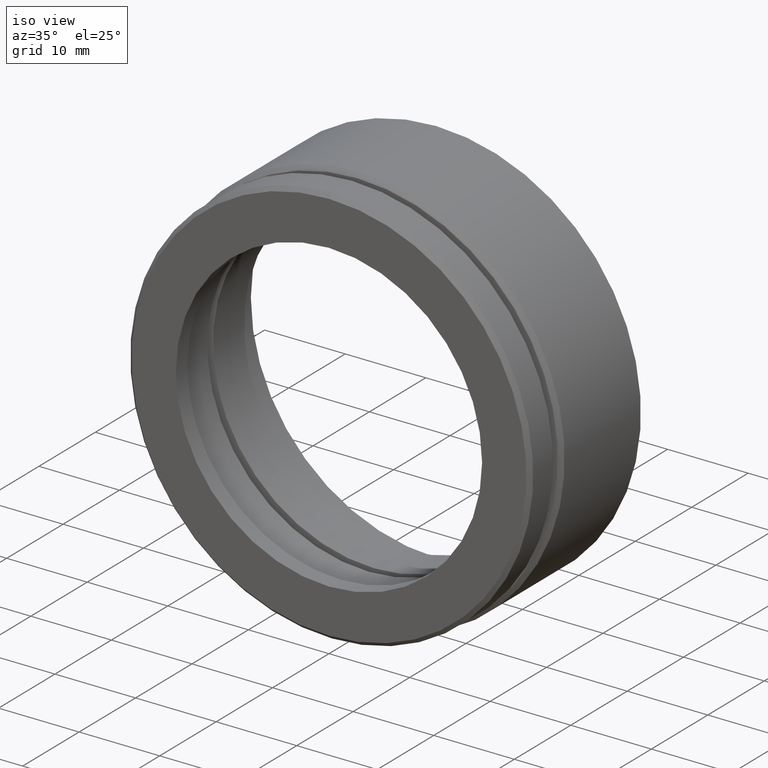
[diagram: clean part render]
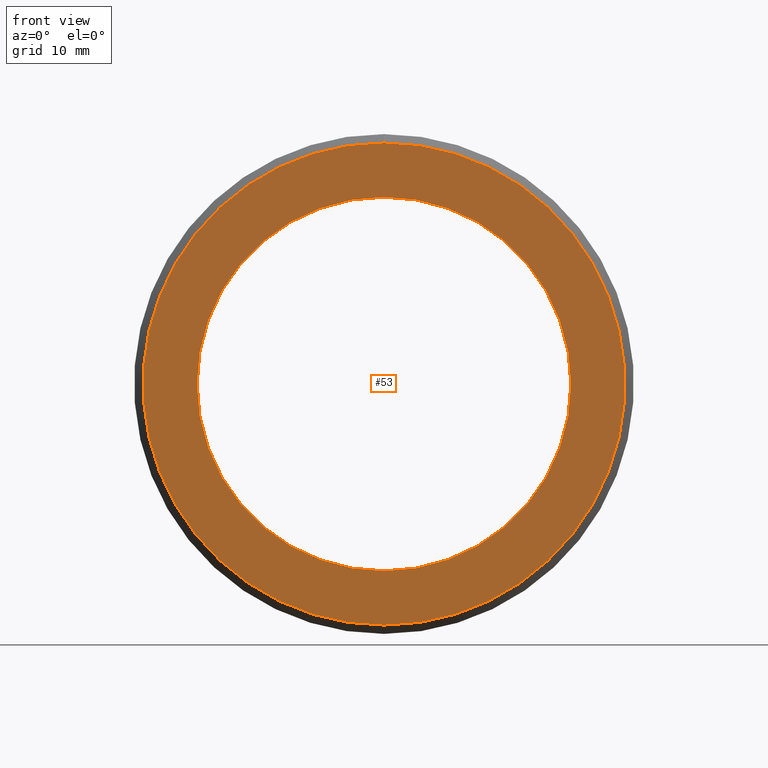
[diagram: tour spotlight — one face highlighted and labeled with its STEP entity id]
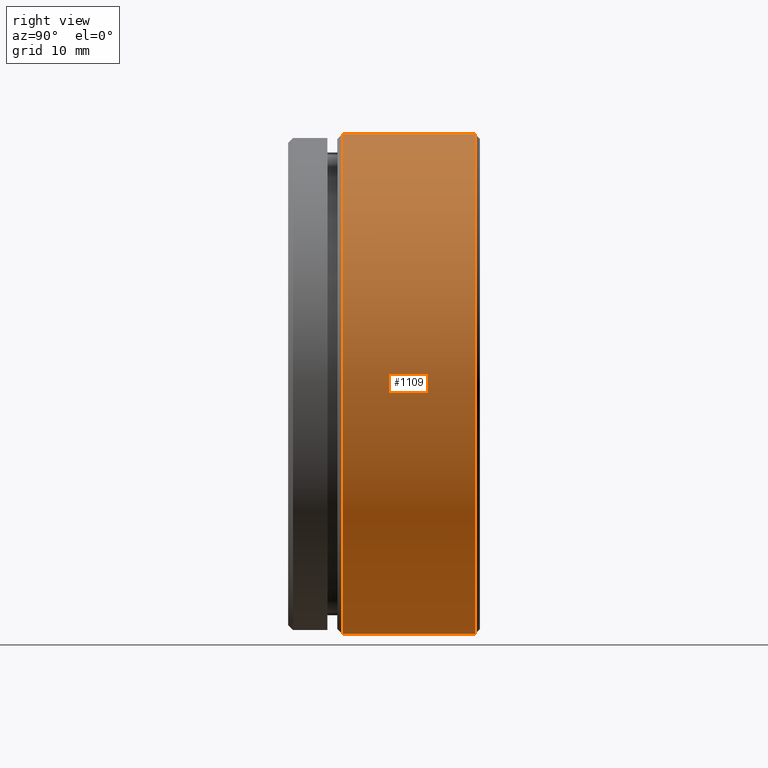
[diagram: tour spotlight — one face highlighted and labeled with its STEP entity id]
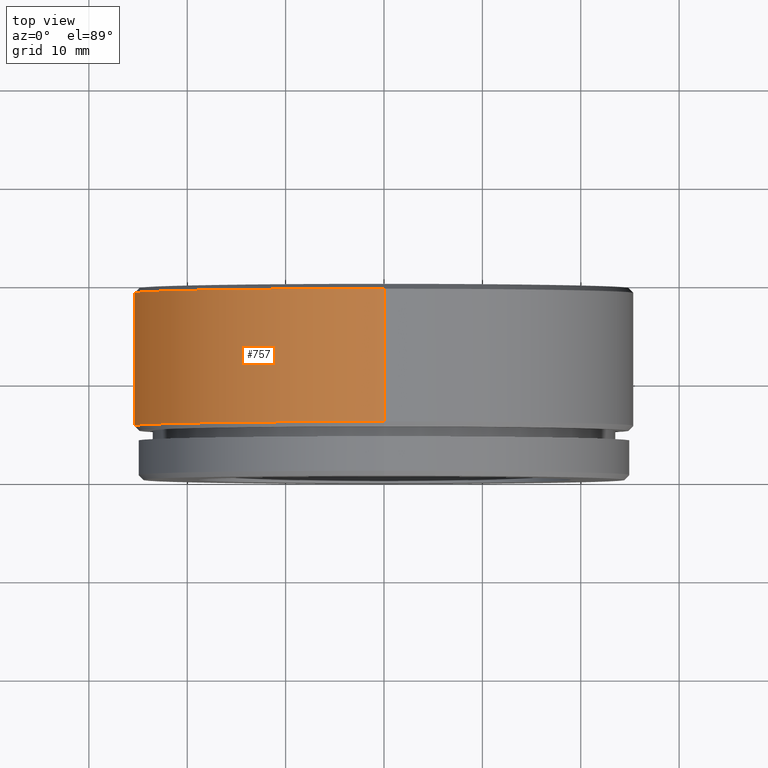
[diagram: tour spotlight — one face highlighted and labeled with its STEP entity id]
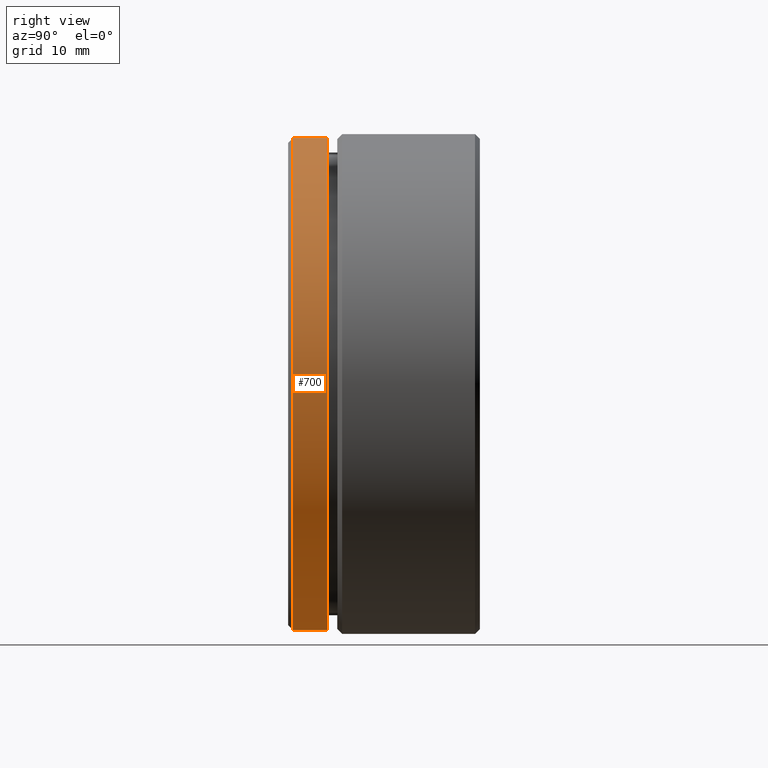
[diagram: tour spotlight — one face highlighted and labeled with its STEP entity id]
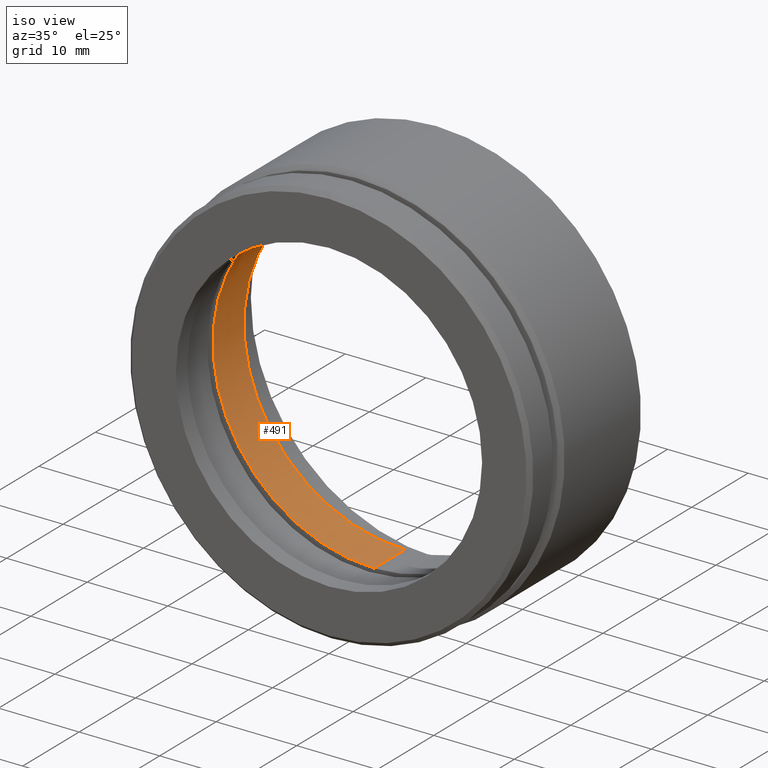
[diagram: tour spotlight — one face highlighted and labeled with its STEP entity id]
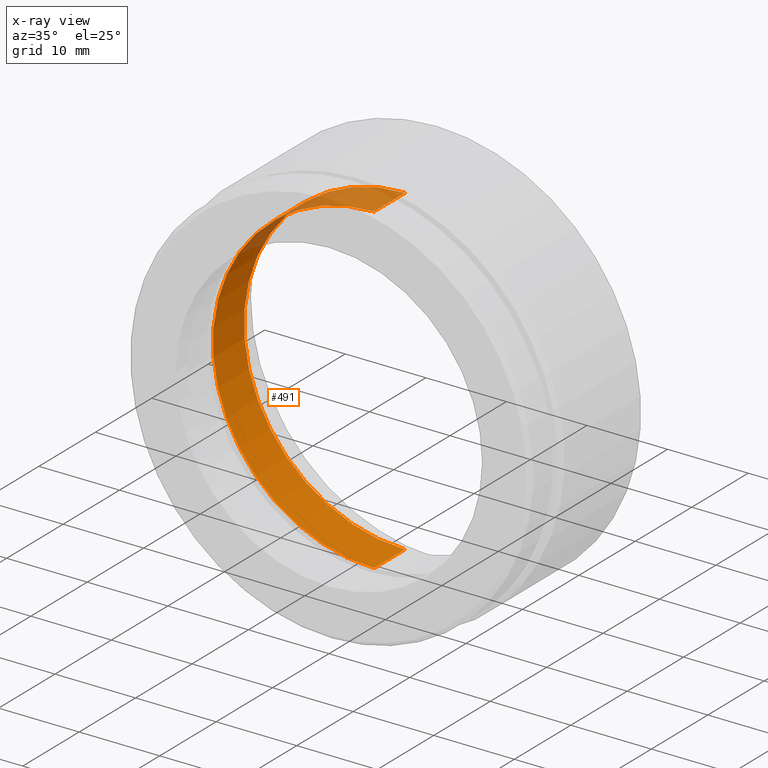
[diagram: x-ray of the same camera — body ghosted, this tour face saturated]
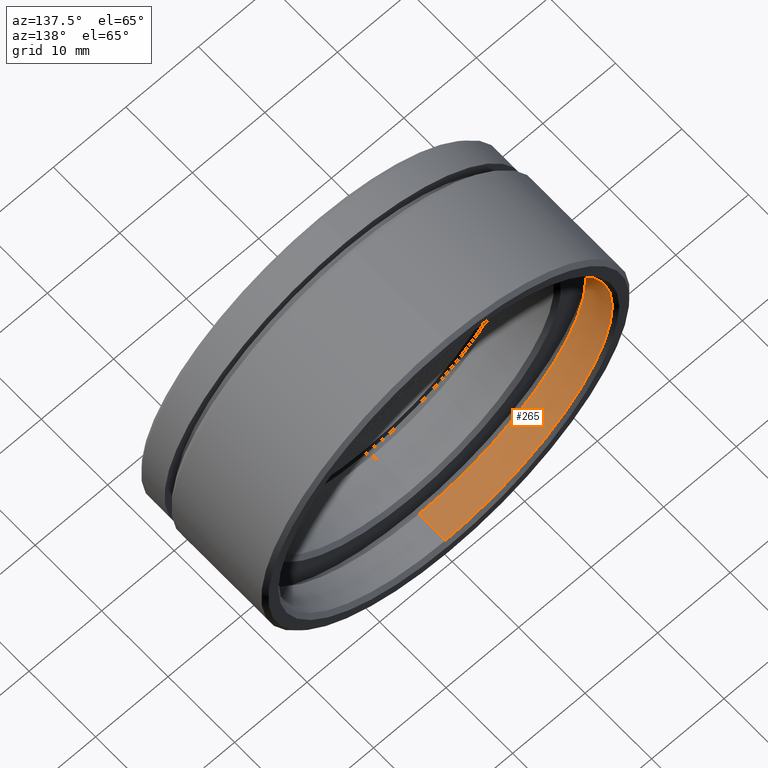
[diagram: tour spotlight — one face highlighted and labeled with its STEP entity id]
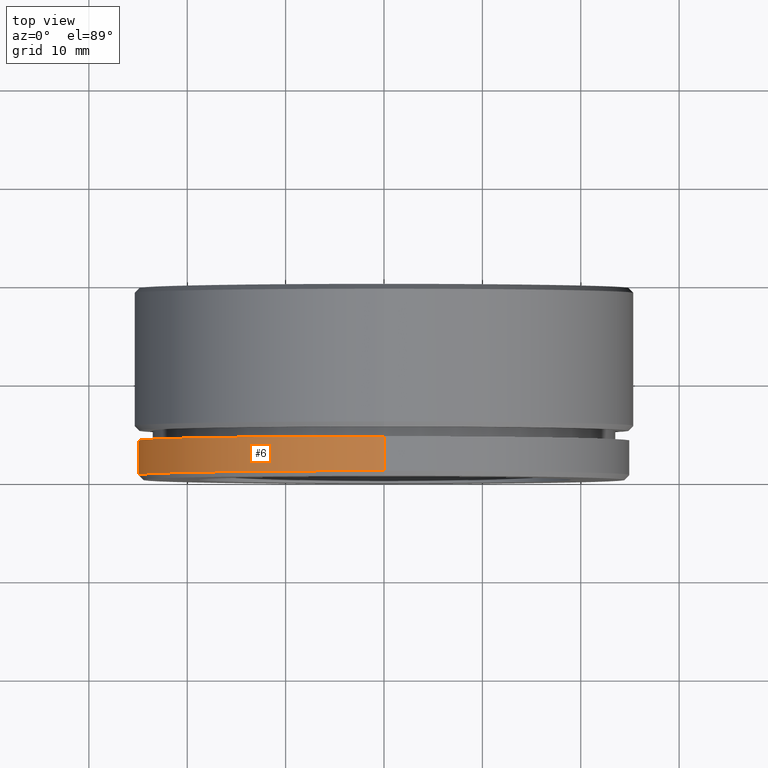
[diagram: tour spotlight — one face highlighted and labeled with its STEP entity id]
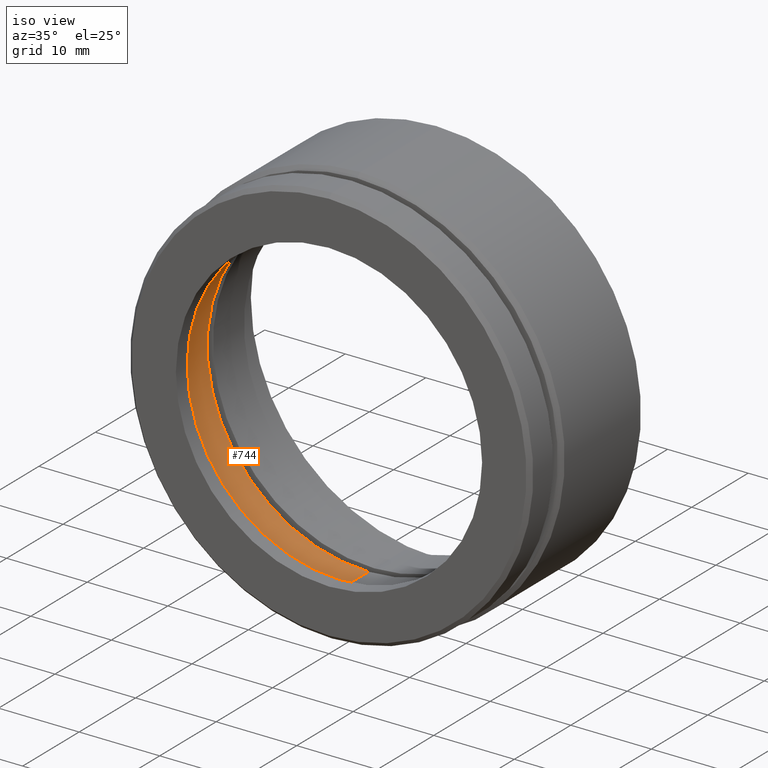
[diagram: tour spotlight — one face highlighted and labeled with its STEP entity id]
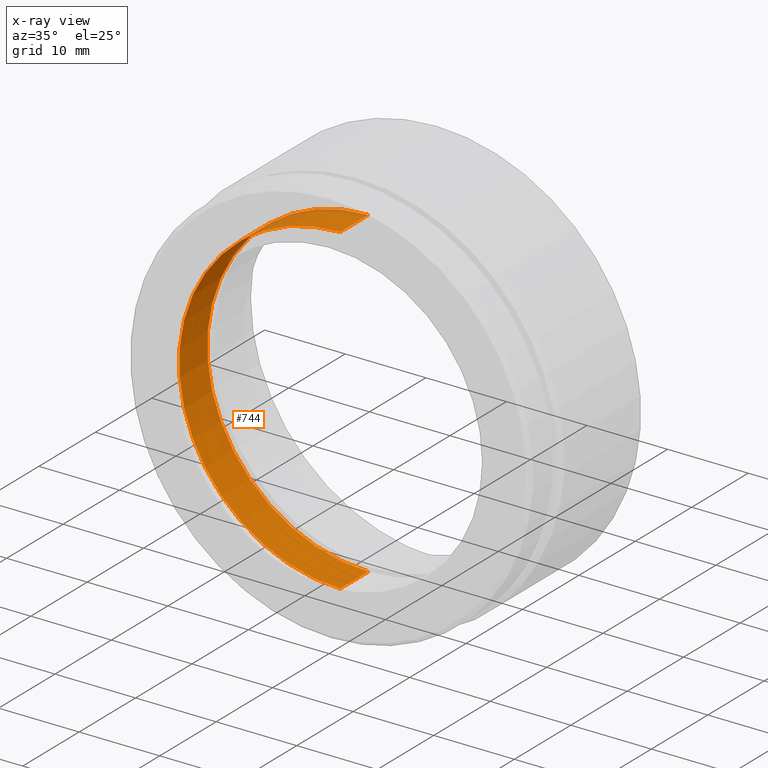
[diagram: x-ray of the same camera — body ghosted, this tour face saturated]
A machine part: a face-by-face anatomy tour. The part has 37 B-rep faces; the first image is the clean iso view, then the 8 largest visible faces are spotlighted one at a time (largest first), each with its STEP entity span.

Face 1 — front view, entity #53. In plain terms, the highlighted planar face has unit normal (0, -1, -0).
Definition (entity closure, byte-faithful):
#21 = EDGE_CURVE ( 'NONE', #455, #651, #697, .T. ) ;
#53 = ADVANCED_FACE ( 'NONE', ( #745, #301 ), #713, .T. ) ;
#73 = ORIENTED_EDGE ( 'NONE', *, *, #954, .T. ) ;
#115 = CARTESIAN_POINT ( 'NONE',  ( 3.031000827889699300E-015, 0.0000000000000000000, -24.50000000000000000 ) ) ;
#121 = EDGE_LOOP ( 'NONE', ( #659, #1071 ) ) ;
#128 = DIRECTION ( 'NONE',  ( -0.0000000000000000000, -1.000000000000000000, -0.0000000000000000000 ) ) ;
#131 = DIRECTION ( 'NONE',  ( 0.0000000000000000000, 0.0000000000000000000, -1.000000000000000000 ) ) ;
#149 = DIRECTION ( 'NONE',  ( 0.0000000000000000000, 0.0000000000000000000, -1.000000000000000000 ) ) ;
#223 = CARTESIAN_POINT ( 'NONE',  ( 0.0000000000000000000, 0.0000000000000000000, 24.50000000000000000 ) ) ;
#276 = AXIS2_PLACEMENT_3D ( 'NONE', #722, #778, #131 ) ;
#277 = VERTEX_POINT ( 'NONE', #115 ) ;
#301 = FACE_BOUND ( 'NONE', #121, .T. ) ;
#359 = DIRECTION ( 'NONE',  ( 0.0000000000000000000, 0.0000000000000000000, -1.000000000000000000 ) ) ;
#391 = DIRECTION ( 'NONE',  ( 0.0000000000000000000, 0.0000000000000000000, -1.000000000000000000 ) ) ;
#396 = CARTESIAN_POINT ( 'NONE',  ( 19.00000000000000000, 0.0000000000000000000, 0.0000000000000000000 ) ) ;
#407 = DIRECTION ( 'NONE',  ( 0.0000000000000000000, -1.000000000000000000, -0.0000000000000000000 ) ) ;
#445 = VERTEX_POINT ( 'NONE', #223 ) ;
#455 = VERTEX_POINT ( 'NONE', #990 ) ;
#543 = EDGE_LOOP ( 'NONE', ( #73, #1032 ) ) ;
#566 = DIRECTION ( 'NONE',  ( -0.0000000000000000000, -1.000000000000000000, -0.0000000000000000000 ) ) ;
#567 = DIRECTION ( 'NONE',  ( -0.0000000000000000000, -1.000000000000000000, -0.0000000000000000000 ) ) ;
#639 = CIRCLE ( 'NONE', #835, 19.00000000000000000 ) ;
#651 = VERTEX_POINT ( 'NONE', #715 ) ;
#659 = ORIENTED_EDGE ( 'NONE', *, *, #21, .F. ) ;
#683 = AXIS2_PLACEMENT_3D ( 'NONE', #997, #128, #149 ) ;
#697 = CIRCLE ( 'NONE', #276, 19.00000000000000000 ) ;
#712 = DIRECTION ( 'NONE',  ( 0.0000000000000000000, 0.0000000000000000000, -1.000000000000000000 ) ) ;
#713 = PLANE ( 'NONE',  #1073 ) ;
#715 = CARTESIAN_POINT ( 'NONE',  ( 2.326828918379971000E-015, 0.0000000000000000000, 19.00000000000000000 ) ) ;
#722 = CARTESIAN_POINT ( 'NONE',  ( 0.0000000000000000000, 0.0000000000000000000, 0.0000000000000000000 ) ) ;
#745 = FACE_OUTER_BOUND ( 'NONE', #543, .T. ) ;
#754 = EDGE_CURVE ( 'NONE', #651, #455, #639, .T. ) ;
#778 = DIRECTION ( 'NONE',  ( -0.0000000000000000000, -1.000000000000000000, -0.0000000000000000000 ) ) ;
#811 = CIRCLE ( 'NONE', #683, 24.50000000000000000 ) ;
#835 = AXIS2_PLACEMENT_3D ( 'NONE', #839, #566, #359 ) ;
#839 = CARTESIAN_POINT ( 'NONE',  ( 0.0000000000000000000, 0.0000000000000000000, 0.0000000000000000000 ) ) ;
#954 = EDGE_CURVE ( 'NONE', #445, #277, #1111, .T. ) ;
#981 = AXIS2_PLACEMENT_3D ( 'NONE', #1039, #567, #712 ) ;
#990 = CARTESIAN_POINT ( 'NONE',  ( 0.0000000000000000000, 0.0000000000000000000, -19.00000000000000000 ) ) ;
#997 = CARTESIAN_POINT ( 'NONE',  ( 0.0000000000000000000, 0.0000000000000000000, 0.0000000000000000000 ) ) ;
#1032 = ORIENTED_EDGE ( 'NONE', *, *, #1046, .T. ) ;
#1039 = CARTESIAN_POINT ( 'NONE',  ( 0.0000000000000000000, 0.0000000000000000000, 0.0000000000000000000 ) ) ;
#1046 = EDGE_CURVE ( 'NONE', #277, #445, #811, .T. ) ;
#1071 = ORIENTED_EDGE ( 'NONE', *, *, #754, .F. ) ;
#1073 = AXIS2_PLACEMENT_3D ( 'NONE', #396, #407, #391 ) ;
#1111 = CIRCLE ( 'NONE', #981, 24.50000000000000000 ) ;

Face 2 — right view, entity #1109. In plain terms, the highlighted cylindrical surface (partial cylindrical patch) has radius 25.4 mm, axis along (-0, -1, -0).
Definition (entity closure, byte-faithful):
#105 = EDGE_CURVE ( 'NONE', #959, #129, #1074, .T. ) ;
#107 = AXIS2_PLACEMENT_3D ( 'NONE', #916, #591, #621 ) ;
#129 = VERTEX_POINT ( 'NONE', #272 ) ;
#137 = ORIENTED_EDGE ( 'NONE', *, *, #240, .F. ) ;
#217 = DIRECTION ( 'NONE',  ( -0.0000000000000000000, -1.000000000000000000, -0.0000000000000000000 ) ) ;
#240 = EDGE_CURVE ( 'NONE', #1014, #490, #945, .T. ) ;
#242 = AXIS2_PLACEMENT_3D ( 'NONE', #983, #575, #1072 ) ;
#272 = CARTESIAN_POINT ( 'NONE',  ( 0.0000000000000000000, 5.499999999999999100, 25.39999999999999900 ) ) ;
#322 = ORIENTED_EDGE ( 'NONE', *, *, #549, .F. ) ;
#328 = ORIENTED_EDGE ( 'NONE', *, *, #332, .T. ) ;
#332 = EDGE_CURVE ( 'NONE', #1014, #959, #1065, .T. ) ;
#363 = AXIS2_PLACEMENT_3D ( 'NONE', #410, #581, #459 ) ;
#365 = CARTESIAN_POINT ( 'NONE',  ( 0.0000000000000000000, 19.00000000000000000, -25.39999999999999900 ) ) ;
#377 = CYLINDRICAL_SURFACE ( 'NONE', #107, 25.39999999999999900 ) ;
#410 = CARTESIAN_POINT ( 'NONE',  ( 0.0000000000000000000, 19.00000000000000000, 0.0000000000000000000 ) ) ;
#443 = CIRCLE ( 'NONE', #242, 25.39999999999999900 ) ;
#459 = DIRECTION ( 'NONE',  ( 0.0000000000000000000, 0.0000000000000000000, -1.000000000000000000 ) ) ;
#490 = VERTEX_POINT ( 'NONE', #792 ) ;
#526 = VECTOR ( 'NONE', #843, 1000.000000000000000 ) ;
#534 = CARTESIAN_POINT ( 'NONE',  ( 3.110602869834276900E-015, 19.00000000000000000, 25.39999999999999900 ) ) ;
#549 = EDGE_CURVE ( 'NONE', #490, #129, #443, .T. ) ;
#575 = DIRECTION ( 'NONE',  ( -0.0000000000000000000, -1.000000000000000000, -0.0000000000000000000 ) ) ;
#581 = DIRECTION ( 'NONE',  ( -0.0000000000000000000, -1.000000000000000000, -0.0000000000000000000 ) ) ;
#591 = DIRECTION ( 'NONE',  ( -0.0000000000000000000, -1.000000000000000000, -0.0000000000000000000 ) ) ;
#621 = DIRECTION ( 'NONE',  ( 0.0000000000000000000, 0.0000000000000000000, -1.000000000000000000 ) ) ;
#765 = ORIENTED_EDGE ( 'NONE', *, *, #105, .T. ) ;
#767 = FACE_OUTER_BOUND ( 'NONE', #1106, .T. ) ;
#792 = CARTESIAN_POINT ( 'NONE',  ( 3.110602869834276900E-015, 5.499999999999999100, -25.39999999999999900 ) ) ;
#843 = DIRECTION ( 'NONE',  ( -0.0000000000000000000, -1.000000000000000000, -0.0000000000000000000 ) ) ;
#916 = CARTESIAN_POINT ( 'NONE',  ( 0.0000000000000000000, 0.0000000000000000000, 0.0000000000000000000 ) ) ;
#944 = CARTESIAN_POINT ( 'NONE',  ( 0.0000000000000000000, 0.0000000000000000000, -25.39999999999999900 ) ) ;
#945 = LINE ( 'NONE', #944, #961 ) ;
#959 = VERTEX_POINT ( 'NONE', #534 ) ;
#961 = VECTOR ( 'NONE', #217, 1000.000000000000000 ) ;
#983 = CARTESIAN_POINT ( 'NONE',  ( 0.0000000000000000000, 5.499999999999999100, 0.0000000000000000000 ) ) ;
#1014 = VERTEX_POINT ( 'NONE', #365 ) ;
#1018 = CARTESIAN_POINT ( 'NONE',  ( 3.110602869834276900E-015, 0.0000000000000000000, 25.39999999999999900 ) ) ;
#1065 = CIRCLE ( 'NONE', #363, 25.39999999999999900 ) ;
#1072 = DIRECTION ( 'NONE',  ( 0.0000000000000000000, 0.0000000000000000000, -1.000000000000000000 ) ) ;
#1074 = LINE ( 'NONE', #1018, #526 ) ;
#1106 = EDGE_LOOP ( 'NONE', ( #328, #765, #322, #137 ) ) ;
#1109 = ADVANCED_FACE ( 'NONE', ( #767 ), #377, .T. ) ;

Face 3 — top view, entity #757. In plain terms, the highlighted cylindrical surface (partial cylindrical patch) has radius 25.4 mm, axis along (-0, -1, -0).
Definition (entity closure, byte-faithful):
#92 = CARTESIAN_POINT ( 'NONE',  ( 0.0000000000000000000, 19.00000000000000000, 0.0000000000000000000 ) ) ;
#105 = EDGE_CURVE ( 'NONE', #959, #129, #1074, .T. ) ;
#129 = VERTEX_POINT ( 'NONE', #272 ) ;
#161 = DIRECTION ( 'NONE',  ( 0.0000000000000000000, 0.0000000000000000000, -1.000000000000000000 ) ) ;
#199 = CYLINDRICAL_SURFACE ( 'NONE', #871, 25.39999999999999900 ) ;
#217 = DIRECTION ( 'NONE',  ( -0.0000000000000000000, -1.000000000000000000, -0.0000000000000000000 ) ) ;
#240 = EDGE_CURVE ( 'NONE', #1014, #490, #945, .T. ) ;
#272 = CARTESIAN_POINT ( 'NONE',  ( 0.0000000000000000000, 5.499999999999999100, 25.39999999999999900 ) ) ;
#316 = ORIENTED_EDGE ( 'NONE', *, *, #105, .F. ) ;
#331 = ORIENTED_EDGE ( 'NONE', *, *, #240, .T. ) ;
#358 = CIRCLE ( 'NONE', #907, 25.39999999999999900 ) ;
#365 = CARTESIAN_POINT ( 'NONE',  ( 0.0000000000000000000, 19.00000000000000000, -25.39999999999999900 ) ) ;
#412 = DIRECTION ( 'NONE',  ( 0.0000000000000000000, 0.0000000000000000000, -1.000000000000000000 ) ) ;
#452 = DIRECTION ( 'NONE',  ( -0.0000000000000000000, -1.000000000000000000, -0.0000000000000000000 ) ) ;
#490 = VERTEX_POINT ( 'NONE', #792 ) ;
#526 = VECTOR ( 'NONE', #843, 1000.000000000000000 ) ;
#534 = CARTESIAN_POINT ( 'NONE',  ( 3.110602869834276900E-015, 19.00000000000000000, 25.39999999999999900 ) ) ;
#584 = DIRECTION ( 'NONE',  ( -0.0000000000000000000, -1.000000000000000000, -0.0000000000000000000 ) ) ;
#682 = DIRECTION ( 'NONE',  ( -0.0000000000000000000, -1.000000000000000000, -0.0000000000000000000 ) ) ;
#688 = ORIENTED_EDGE ( 'NONE', *, *, #932, .T. ) ;
#752 = CARTESIAN_POINT ( 'NONE',  ( 0.0000000000000000000, 0.0000000000000000000, 0.0000000000000000000 ) ) ;
#757 = ADVANCED_FACE ( 'NONE', ( #911 ), #199, .T. ) ;
#792 = CARTESIAN_POINT ( 'NONE',  ( 3.110602869834276900E-015, 5.499999999999999100, -25.39999999999999900 ) ) ;
#843 = DIRECTION ( 'NONE',  ( -0.0000000000000000000, -1.000000000000000000, -0.0000000000000000000 ) ) ;
#844 = EDGE_LOOP ( 'NONE', ( #316, #688, #331, #1082 ) ) ;
#871 = AXIS2_PLACEMENT_3D ( 'NONE', #752, #584, #161 ) ;
#886 = CARTESIAN_POINT ( 'NONE',  ( 0.0000000000000000000, 5.499999999999999100, 0.0000000000000000000 ) ) ;
#900 = CIRCLE ( 'NONE', #1050, 25.39999999999999900 ) ;
#907 = AXIS2_PLACEMENT_3D ( 'NONE', #886, #682, #1070 ) ;
#911 = FACE_OUTER_BOUND ( 'NONE', #844, .T. ) ;
#932 = EDGE_CURVE ( 'NONE', #959, #1014, #900, .T. ) ;
#944 = CARTESIAN_POINT ( 'NONE',  ( 0.0000000000000000000, 0.0000000000000000000, -25.39999999999999900 ) ) ;
#945 = LINE ( 'NONE', #944, #961 ) ;
#959 = VERTEX_POINT ( 'NONE', #534 ) ;
#961 = VECTOR ( 'NONE', #217, 1000.000000000000000 ) ;
#971 = EDGE_CURVE ( 'NONE', #129, #490, #358, .T. ) ;
#1014 = VERTEX_POINT ( 'NONE', #365 ) ;
#1018 = CARTESIAN_POINT ( 'NONE',  ( 3.110602869834276900E-015, 0.0000000000000000000, 25.39999999999999900 ) ) ;
#1050 = AXIS2_PLACEMENT_3D ( 'NONE', #92, #452, #412 ) ;
#1070 = DIRECTION ( 'NONE',  ( 0.0000000000000000000, 0.0000000000000000000, -1.000000000000000000 ) ) ;
#1074 = LINE ( 'NONE', #1018, #526 ) ;
#1082 = ORIENTED_EDGE ( 'NONE', *, *, #971, .F. ) ;

Face 4 — right view, entity #700. In plain terms, the highlighted cylindrical surface (partial cylindrical patch) has radius 25 mm, axis along (-0, -1, -0).
Definition (entity closure, byte-faithful):
#5 = LINE ( 'NONE', #897, #220 ) ;
#23 = CARTESIAN_POINT ( 'NONE',  ( 3.061616997868383000E-015, 0.4999999999999979500, -25.00000000000000000 ) ) ;
#27 = CARTESIAN_POINT ( 'NONE',  ( 0.0000000000000000000, 4.000000000000000900, 0.0000000000000000000 ) ) ;
#29 = LINE ( 'NONE', #422, #251 ) ;
#94 = VERTEX_POINT ( 'NONE', #23 ) ;
#99 = CIRCLE ( 'NONE', #1087, 25.00000000000000000 ) ;
#100 = ORIENTED_EDGE ( 'NONE', *, *, #965, .T. ) ;
#152 = CIRCLE ( 'NONE', #1038, 25.00000000000000000 ) ;
#189 = DIRECTION ( 'NONE',  ( -0.0000000000000000000, -1.000000000000000000, -0.0000000000000000000 ) ) ;
#190 = CYLINDRICAL_SURFACE ( 'NONE', #824, 25.00000000000000000 ) ;
#206 = EDGE_CURVE ( 'NONE', #94, #603, #99, .T. ) ;
#207 = CARTESIAN_POINT ( 'NONE',  ( 0.0000000000000000000, 4.000000000000000900, -25.00000000000000000 ) ) ;
#220 = VECTOR ( 'NONE', #1033, 1000.000000000000000 ) ;
#227 = EDGE_LOOP ( 'NONE', ( #732, #100, #904, #282 ) ) ;
#251 = VECTOR ( 'NONE', #698, 1000.000000000000000 ) ;
#275 = FACE_OUTER_BOUND ( 'NONE', #227, .T. ) ;
#282 = ORIENTED_EDGE ( 'NONE', *, *, #595, .F. ) ;
#370 = VERTEX_POINT ( 'NONE', #499 ) ;
#422 = CARTESIAN_POINT ( 'NONE',  ( 0.0000000000000000000, 0.0000000000000000000, -25.00000000000000000 ) ) ;
#425 = DIRECTION ( 'NONE',  ( -0.0000000000000000000, -1.000000000000000000, -0.0000000000000000000 ) ) ;
#430 = VERTEX_POINT ( 'NONE', #207 ) ;
#477 = DIRECTION ( 'NONE',  ( -0.0000000000000000000, -1.000000000000000000, -0.0000000000000000000 ) ) ;
#499 = CARTESIAN_POINT ( 'NONE',  ( 3.061616997868383000E-015, 4.000000000000000900, 25.00000000000000000 ) ) ;
#554 = DIRECTION ( 'NONE',  ( 0.0000000000000000000, 0.0000000000000000000, -1.000000000000000000 ) ) ;
#560 = CARTESIAN_POINT ( 'NONE',  ( 0.0000000000000000000, 0.4999999999999979500, 0.0000000000000000000 ) ) ;
#569 = DIRECTION ( 'NONE',  ( 0.0000000000000000000, 0.0000000000000000000, -1.000000000000000000 ) ) ;
#595 = EDGE_CURVE ( 'NONE', #430, #94, #29, .T. ) ;
#603 = VERTEX_POINT ( 'NONE', #785 ) ;
#698 = DIRECTION ( 'NONE',  ( -0.0000000000000000000, -1.000000000000000000, -0.0000000000000000000 ) ) ;
#700 = ADVANCED_FACE ( 'NONE', ( #275 ), #190, .T. ) ;
#703 = DIRECTION ( 'NONE',  ( 0.0000000000000000000, 0.0000000000000000000, -1.000000000000000000 ) ) ;
#732 = ORIENTED_EDGE ( 'NONE', *, *, #801, .T. ) ;
#785 = CARTESIAN_POINT ( 'NONE',  ( 0.0000000000000000000, 0.4999999999999979500, 25.00000000000000000 ) ) ;
#801 = EDGE_CURVE ( 'NONE', #430, #370, #152, .T. ) ;
#824 = AXIS2_PLACEMENT_3D ( 'NONE', #848, #425, #703 ) ;
#848 = CARTESIAN_POINT ( 'NONE',  ( 0.0000000000000000000, 0.0000000000000000000, 0.0000000000000000000 ) ) ;
#897 = CARTESIAN_POINT ( 'NONE',  ( 3.061616997868383000E-015, 0.0000000000000000000, 25.00000000000000000 ) ) ;
#904 = ORIENTED_EDGE ( 'NONE', *, *, #206, .F. ) ;
#965 = EDGE_CURVE ( 'NONE', #370, #603, #5, .T. ) ;
#1033 = DIRECTION ( 'NONE',  ( -0.0000000000000000000, -1.000000000000000000, -0.0000000000000000000 ) ) ;
#1038 = AXIS2_PLACEMENT_3D ( 'NONE', #27, #189, #569 ) ;
#1087 = AXIS2_PLACEMENT_3D ( 'NONE', #560, #477, #554 ) ;

Face 5 — iso view, entity #491. An x-ray twin of the same camera follows (body ghosted, this face saturated) — the face is partly hidden behind the body. In plain terms, the highlighted cylindrical surface (partial cylindrical patch) has radius 20 mm, axis along (-0, -1, -0).
Definition (entity closure, byte-faithful):
#9 = ORIENTED_EDGE ( 'NONE', *, *, #650, .T. ) ;
#33 = LINE ( 'NONE', #395, #423 ) ;
#114 = DIRECTION ( 'NONE',  ( -0.0000000000000000000, -1.000000000000000000, -0.0000000000000000000 ) ) ;
#188 = ORIENTED_EDGE ( 'NONE', *, *, #1083, .T. ) ;
#201 = ORIENTED_EDGE ( 'NONE', *, *, #992, .F. ) ;
#264 = CARTESIAN_POINT ( 'NONE',  ( 0.0000000000000000000, 13.49999999999998900, 0.0000000000000000000 ) ) ;
#299 = AXIS2_PLACEMENT_3D ( 'NONE', #264, #691, #855 ) ;
#352 = LINE ( 'NONE', #647, #354 ) ;
#354 = VECTOR ( 'NONE', #884, 1000.000000000000000 ) ;
#366 = CIRCLE ( 'NONE', #299, 20.00000000000000000 ) ;
#374 = VERTEX_POINT ( 'NONE', #513 ) ;
#379 = ORIENTED_EDGE ( 'NONE', *, *, #666, .T. ) ;
#395 = CARTESIAN_POINT ( 'NONE',  ( 0.0000000000000000000, 0.0000000000000000000, -20.00000000000000000 ) ) ;
#421 = AXIS2_PLACEMENT_3D ( 'NONE', #1099, #1090, #866 ) ;
#423 = VECTOR ( 'NONE', #114, 1000.000000000000000 ) ;
#454 = CYLINDRICAL_SURFACE ( 'NONE', #810, 20.00000000000000000 ) ;
#458 = VERTEX_POINT ( 'NONE', #766 ) ;
#491 = ADVANCED_FACE ( 'NONE', ( #1096 ), #454, .F. ) ;
#513 = CARTESIAN_POINT ( 'NONE',  ( 2.449293598294706500E-015, 13.49999999999998900, 20.00000000000000000 ) ) ;
#537 = CARTESIAN_POINT ( 'NONE',  ( 0.0000000000000000000, 8.000000000000000000, -20.00000000000000000 ) ) ;
#556 = EDGE_LOOP ( 'NONE', ( #379, #9, #188, #201 ) ) ;
#614 = VERTEX_POINT ( 'NONE', #537 ) ;
#625 = DIRECTION ( 'NONE',  ( 0.0000000000000000000, 0.0000000000000000000, -1.000000000000000000 ) ) ;
#647 = CARTESIAN_POINT ( 'NONE',  ( 2.449293598294706500E-015, 0.0000000000000000000, 20.00000000000000000 ) ) ;
#650 = EDGE_CURVE ( 'NONE', #374, #1105, #352, .T. ) ;
#658 = DIRECTION ( 'NONE',  ( -0.0000000000000000000, -1.000000000000000000, -0.0000000000000000000 ) ) ;
#666 = EDGE_CURVE ( 'NONE', #458, #374, #366, .T. ) ;
#691 = DIRECTION ( 'NONE',  ( -0.0000000000000000000, 1.000000000000000000, -0.0000000000000000000 ) ) ;
#755 = CIRCLE ( 'NONE', #421, 20.00000000000000000 ) ;
#766 = CARTESIAN_POINT ( 'NONE',  ( 0.0000000000000000000, 13.49999999999998900, -20.00000000000000000 ) ) ;
#810 = AXIS2_PLACEMENT_3D ( 'NONE', #827, #658, #625 ) ;
#827 = CARTESIAN_POINT ( 'NONE',  ( 0.0000000000000000000, 0.0000000000000000000, 0.0000000000000000000 ) ) ;
#855 = DIRECTION ( 'NONE',  ( 0.0000000000000000000, 0.0000000000000000000, 1.000000000000000000 ) ) ;
#866 = DIRECTION ( 'NONE',  ( 0.0000000000000000000, 0.0000000000000000000, -1.000000000000000000 ) ) ;
#884 = DIRECTION ( 'NONE',  ( -0.0000000000000000000, -1.000000000000000000, -0.0000000000000000000 ) ) ;
#992 = EDGE_CURVE ( 'NONE', #458, #614, #33, .T. ) ;
#1069 = CARTESIAN_POINT ( 'NONE',  ( 2.449293598294706500E-015, 8.000000000000000000, 20.00000000000000000 ) ) ;
#1083 = EDGE_CURVE ( 'NONE', #1105, #614, #755, .T. ) ;
#1090 = DIRECTION ( 'NONE',  ( -0.0000000000000000000, -1.000000000000000000, -0.0000000000000000000 ) ) ;
#1096 = FACE_OUTER_BOUND ( 'NONE', #556, .T. ) ;
#1099 = CARTESIAN_POINT ( 'NONE',  ( 0.0000000000000000000, 8.000000000000000000, 0.0000000000000000000 ) ) ;
#1105 = VERTEX_POINT ( 'NONE', #1069 ) ;

Face 6 — auxiliary view, entity #265. In plain terms, the highlighted cylindrical surface (partial cylindrical patch) has radius 23 mm, axis along (-0, -1, -0).
Definition (entity closure, byte-faithful):
#7 = CARTESIAN_POINT ( 'NONE',  ( 0.0000000000000000000, 19.00000000000000000, -23.00000000000000000 ) ) ;
#34 = DIRECTION ( 'NONE',  ( 0.0000000000000000000, 0.0000000000000000000, 1.000000000000000000 ) ) ;
#109 = DIRECTION ( 'NONE',  ( 0.0000000000000000000, 0.0000000000000000000, -1.000000000000000000 ) ) ;
#183 = ORIENTED_EDGE ( 'NONE', *, *, #570, .T. ) ;
#184 = CIRCLE ( 'NONE', #783, 23.00000000000000000 ) ;
#191 = DIRECTION ( 'NONE',  ( -0.0000000000000000000, -1.000000000000000000, -0.0000000000000000000 ) ) ;
#211 = EDGE_CURVE ( 'NONE', #596, #908, #872, .T. ) ;
#265 = ADVANCED_FACE ( 'NONE', ( #870 ), #909, .F. ) ;
#302 = VERTEX_POINT ( 'NONE', #7 ) ;
#321 = CARTESIAN_POINT ( 'NONE',  ( 0.0000000000000000000, 0.0000000000000000000, -23.00000000000000000 ) ) ;
#350 = CARTESIAN_POINT ( 'NONE',  ( 0.0000000000000000000, 0.0000000000000000000, 0.0000000000000000000 ) ) ;
#397 = EDGE_CURVE ( 'NONE', #302, #1095, #726, .T. ) ;
#402 = AXIS2_PLACEMENT_3D ( 'NONE', #853, #966, #867 ) ;
#431 = CIRCLE ( 'NONE', #402, 23.00000000000000000 ) ;
#450 = DIRECTION ( 'NONE',  ( -0.0000000000000000000, -1.000000000000000000, -0.0000000000000000000 ) ) ;
#467 = CARTESIAN_POINT ( 'NONE',  ( 2.816687638038912400E-015, 0.0000000000000000000, 23.00000000000000000 ) ) ;
#476 = ORIENTED_EDGE ( 'NONE', *, *, #397, .F. ) ;
#519 = ORIENTED_EDGE ( 'NONE', *, *, #211, .T. ) ;
#533 = EDGE_LOOP ( 'NONE', ( #822, #519, #183, #476 ) ) ;
#570 = EDGE_CURVE ( 'NONE', #908, #1095, #431, .T. ) ;
#596 = VERTEX_POINT ( 'NONE', #812 ) ;
#631 = DIRECTION ( 'NONE',  ( -0.0000000000000000000, 1.000000000000000000, -0.0000000000000000000 ) ) ;
#648 = VECTOR ( 'NONE', #450, 1000.000000000000000 ) ;
#709 = EDGE_CURVE ( 'NONE', #302, #596, #184, .T. ) ;
#711 = VECTOR ( 'NONE', #733, 1000.000000000000000 ) ;
#726 = LINE ( 'NONE', #321, #711 ) ;
#733 = DIRECTION ( 'NONE',  ( -0.0000000000000000000, -1.000000000000000000, -0.0000000000000000000 ) ) ;
#747 = AXIS2_PLACEMENT_3D ( 'NONE', #350, #191, #109 ) ;
#783 = AXIS2_PLACEMENT_3D ( 'NONE', #912, #631, #34 ) ;
#812 = CARTESIAN_POINT ( 'NONE',  ( 2.816687638038912400E-015, 19.00000000000000000, 23.00000000000000000 ) ) ;
#822 = ORIENTED_EDGE ( 'NONE', *, *, #709, .T. ) ;
#853 = CARTESIAN_POINT ( 'NONE',  ( 0.0000000000000000000, 15.00000000000000000, 0.0000000000000000000 ) ) ;
#867 = DIRECTION ( 'NONE',  ( 0.0000000000000000000, 0.0000000000000000000, -1.000000000000000000 ) ) ;
#870 = FACE_OUTER_BOUND ( 'NONE', #533, .T. ) ;
#872 = LINE ( 'NONE', #467, #648 ) ;
#908 = VERTEX_POINT ( 'NONE', #1057 ) ;
#909 = CYLINDRICAL_SURFACE ( 'NONE', #747, 23.00000000000000000 ) ;
#912 = CARTESIAN_POINT ( 'NONE',  ( 0.0000000000000000000, 19.00000000000000000, 0.0000000000000000000 ) ) ;
#966 = DIRECTION ( 'NONE',  ( -0.0000000000000000000, -1.000000000000000000, -0.0000000000000000000 ) ) ;
#982 = CARTESIAN_POINT ( 'NONE',  ( 0.0000000000000000000, 15.00000000000000000, -23.00000000000000000 ) ) ;
#1057 = CARTESIAN_POINT ( 'NONE',  ( 2.816687638038912400E-015, 15.00000000000000000, 23.00000000000000000 ) ) ;
#1095 = VERTEX_POINT ( 'NONE', #982 ) ;

Face 7 — top view, entity #6. In plain terms, the highlighted cylindrical surface (partial cylindrical patch) has radius 25 mm, axis along (-0, -1, -0).
Definition (entity closure, byte-faithful):
#5 = LINE ( 'NONE', #897, #220 ) ;
#6 = ADVANCED_FACE ( 'NONE', ( #1086 ), #723, .T. ) ;
#23 = CARTESIAN_POINT ( 'NONE',  ( 3.061616997868383000E-015, 0.4999999999999979500, -25.00000000000000000 ) ) ;
#29 = LINE ( 'NONE', #422, #251 ) ;
#94 = VERTEX_POINT ( 'NONE', #23 ) ;
#140 = DIRECTION ( 'NONE',  ( 0.0000000000000000000, 0.0000000000000000000, -1.000000000000000000 ) ) ;
#151 = CARTESIAN_POINT ( 'NONE',  ( 0.0000000000000000000, 0.4999999999999979500, 0.0000000000000000000 ) ) ;
#193 = DIRECTION ( 'NONE',  ( -0.0000000000000000000, -1.000000000000000000, -0.0000000000000000000 ) ) ;
#207 = CARTESIAN_POINT ( 'NONE',  ( 0.0000000000000000000, 4.000000000000000900, -25.00000000000000000 ) ) ;
#220 = VECTOR ( 'NONE', #1033, 1000.000000000000000 ) ;
#222 = DIRECTION ( 'NONE',  ( 0.0000000000000000000, 0.0000000000000000000, -1.000000000000000000 ) ) ;
#225 = AXIS2_PLACEMENT_3D ( 'NONE', #1058, #602, #222 ) ;
#251 = VECTOR ( 'NONE', #698, 1000.000000000000000 ) ;
#325 = CIRCLE ( 'NONE', #940, 25.00000000000000000 ) ;
#347 = CARTESIAN_POINT ( 'NONE',  ( 0.0000000000000000000, 4.000000000000000900, 0.0000000000000000000 ) ) ;
#370 = VERTEX_POINT ( 'NONE', #499 ) ;
#422 = CARTESIAN_POINT ( 'NONE',  ( 0.0000000000000000000, 0.0000000000000000000, -25.00000000000000000 ) ) ;
#430 = VERTEX_POINT ( 'NONE', #207 ) ;
#439 = EDGE_LOOP ( 'NONE', ( #923, #930, #532, #574 ) ) ;
#457 = EDGE_CURVE ( 'NONE', #603, #94, #649, .T. ) ;
#499 = CARTESIAN_POINT ( 'NONE',  ( 3.061616997868383000E-015, 4.000000000000000900, 25.00000000000000000 ) ) ;
#532 = ORIENTED_EDGE ( 'NONE', *, *, #595, .T. ) ;
#574 = ORIENTED_EDGE ( 'NONE', *, *, #457, .F. ) ;
#595 = EDGE_CURVE ( 'NONE', #430, #94, #29, .T. ) ;
#602 = DIRECTION ( 'NONE',  ( -0.0000000000000000000, -1.000000000000000000, -0.0000000000000000000 ) ) ;
#603 = VERTEX_POINT ( 'NONE', #785 ) ;
#617 = DIRECTION ( 'NONE',  ( 0.0000000000000000000, 0.0000000000000000000, -1.000000000000000000 ) ) ;
#649 = CIRCLE ( 'NONE', #888, 25.00000000000000000 ) ;
#698 = DIRECTION ( 'NONE',  ( -0.0000000000000000000, -1.000000000000000000, -0.0000000000000000000 ) ) ;
#723 = CYLINDRICAL_SURFACE ( 'NONE', #225, 25.00000000000000000 ) ;
#742 = DIRECTION ( 'NONE',  ( -0.0000000000000000000, -1.000000000000000000, -0.0000000000000000000 ) ) ;
#785 = CARTESIAN_POINT ( 'NONE',  ( 0.0000000000000000000, 0.4999999999999979500, 25.00000000000000000 ) ) ;
#787 = EDGE_CURVE ( 'NONE', #370, #430, #325, .T. ) ;
#888 = AXIS2_PLACEMENT_3D ( 'NONE', #151, #193, #140 ) ;
#897 = CARTESIAN_POINT ( 'NONE',  ( 3.061616997868383000E-015, 0.0000000000000000000, 25.00000000000000000 ) ) ;
#923 = ORIENTED_EDGE ( 'NONE', *, *, #965, .F. ) ;
#930 = ORIENTED_EDGE ( 'NONE', *, *, #787, .T. ) ;
#940 = AXIS2_PLACEMENT_3D ( 'NONE', #347, #742, #617 ) ;
#965 = EDGE_CURVE ( 'NONE', #370, #603, #5, .T. ) ;
#1033 = DIRECTION ( 'NONE',  ( -0.0000000000000000000, -1.000000000000000000, -0.0000000000000000000 ) ) ;
#1058 = CARTESIAN_POINT ( 'NONE',  ( 0.0000000000000000000, 0.0000000000000000000, 0.0000000000000000000 ) ) ;
#1086 = FACE_OUTER_BOUND ( 'NONE', #439, .T. ) ;

Face 8 — iso view, entity #744. An x-ray twin of the same camera follows (body ghosted, this face saturated) — the face is partly hidden behind the body. In plain terms, the highlighted cylindrical surface (partial cylindrical patch) has radius 20 mm, axis along (-0, -1, -0).
Definition (entity closure, byte-faithful):
#28 = EDGE_CURVE ( 'NONE', #920, #173, #269, .T. ) ;
#36 = CIRCLE ( 'NONE', #681, 20.00000000000000000 ) ;
#41 = CYLINDRICAL_SURFACE ( 'NONE', #660, 20.00000000000000000 ) ;
#66 = EDGE_CURVE ( 'NONE', #342, #669, #770, .T. ) ;
#87 = EDGE_CURVE ( 'NONE', #669, #173, #36, .T. ) ;
#97 = CARTESIAN_POINT ( 'NONE',  ( 0.0000000000000000000, 7.000000000000000000, 0.0000000000000000000 ) ) ;
#103 = AXIS2_PLACEMENT_3D ( 'NONE', #97, #147, #145 ) ;
#117 = CARTESIAN_POINT ( 'NONE',  ( 0.0000000000000000000, 7.000000000000000000, -20.00000000000000000 ) ) ;
#126 = CARTESIAN_POINT ( 'NONE',  ( 2.449293598294706500E-015, 7.000000000000000000, 20.00000000000000000 ) ) ;
#145 = DIRECTION ( 'NONE',  ( 0.0000000000000000000, 0.0000000000000000000, -1.000000000000000000 ) ) ;
#147 = DIRECTION ( 'NONE',  ( -0.0000000000000000000, -1.000000000000000000, -0.0000000000000000000 ) ) ;
#173 = VERTEX_POINT ( 'NONE', #466 ) ;
#204 = DIRECTION ( 'NONE',  ( 0.0000000000000000000, 0.0000000000000000000, -1.000000000000000000 ) ) ;
#269 = LINE ( 'NONE', #367, #706 ) ;
#287 = ORIENTED_EDGE ( 'NONE', *, *, #28, .F. ) ;
#307 = EDGE_CURVE ( 'NONE', #342, #920, #896, .T. ) ;
#338 = ORIENTED_EDGE ( 'NONE', *, *, #307, .F. ) ;
#342 = VERTEX_POINT ( 'NONE', #126 ) ;
#367 = CARTESIAN_POINT ( 'NONE',  ( 0.0000000000000000000, 0.0000000000000000000, -20.00000000000000000 ) ) ;
#413 = DIRECTION ( 'NONE',  ( -0.0000000000000000000, -1.000000000000000000, -0.0000000000000000000 ) ) ;
#466 = CARTESIAN_POINT ( 'NONE',  ( 0.0000000000000000000, 2.000000000000000000, -20.00000000000000000 ) ) ;
#504 = ORIENTED_EDGE ( 'NONE', *, *, #66, .T. ) ;
#552 = VECTOR ( 'NONE', #937, 1000.000000000000000 ) ;
#660 = AXIS2_PLACEMENT_3D ( 'NONE', #878, #934, #204 ) ;
#669 = VERTEX_POINT ( 'NONE', #928 ) ;
#681 = AXIS2_PLACEMENT_3D ( 'NONE', #718, #879, #863 ) ;
#690 = ORIENTED_EDGE ( 'NONE', *, *, #87, .T. ) ;
#692 = FACE_OUTER_BOUND ( 'NONE', #857, .T. ) ;
#706 = VECTOR ( 'NONE', #413, 1000.000000000000000 ) ;
#718 = CARTESIAN_POINT ( 'NONE',  ( 0.0000000000000000000, 2.000000000000000000, 0.0000000000000000000 ) ) ;
#744 = ADVANCED_FACE ( 'NONE', ( #692 ), #41, .F. ) ;
#770 = LINE ( 'NONE', #882, #552 ) ;
#857 = EDGE_LOOP ( 'NONE', ( #338, #504, #690, #287 ) ) ;
#863 = DIRECTION ( 'NONE',  ( 0.0000000000000000000, 0.0000000000000000000, -1.000000000000000000 ) ) ;
#878 = CARTESIAN_POINT ( 'NONE',  ( 0.0000000000000000000, 0.0000000000000000000, 0.0000000000000000000 ) ) ;
#879 = DIRECTION ( 'NONE',  ( -0.0000000000000000000, -1.000000000000000000, -0.0000000000000000000 ) ) ;
#882 = CARTESIAN_POINT ( 'NONE',  ( 2.449293598294706500E-015, 0.0000000000000000000, 20.00000000000000000 ) ) ;
#896 = CIRCLE ( 'NONE', #103, 20.00000000000000000 ) ;
#920 = VERTEX_POINT ( 'NONE', #117 ) ;
#928 = CARTESIAN_POINT ( 'NONE',  ( 2.449293598294706500E-015, 2.000000000000000000, 20.00000000000000000 ) ) ;
#934 = DIRECTION ( 'NONE',  ( -0.0000000000000000000, -1.000000000000000000, -0.0000000000000000000 ) ) ;
#937 = DIRECTION ( 'NONE',  ( -0.0000000000000000000, -1.000000000000000000, -0.0000000000000000000 ) ) ;